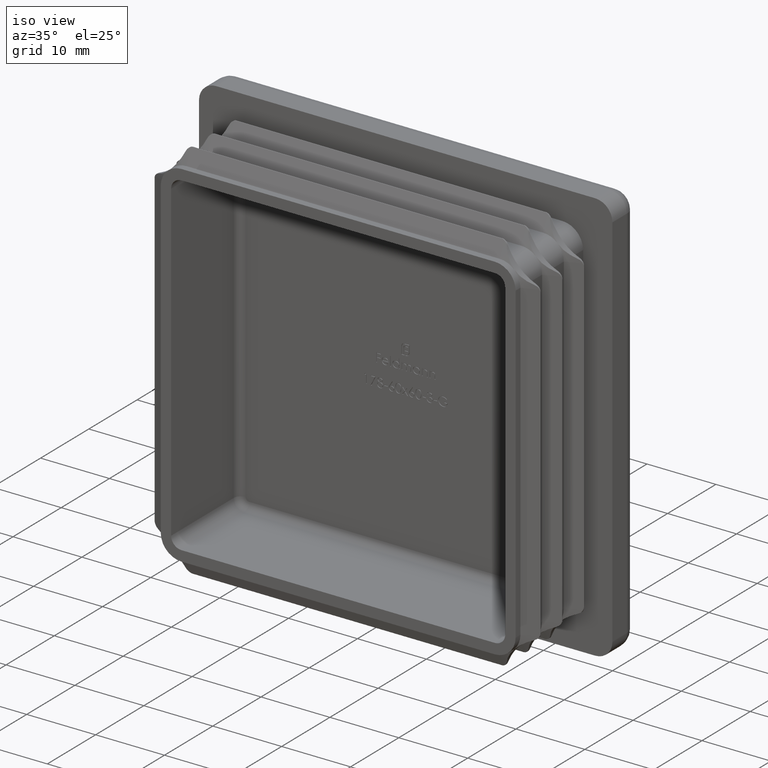
[diagram: clean part render]
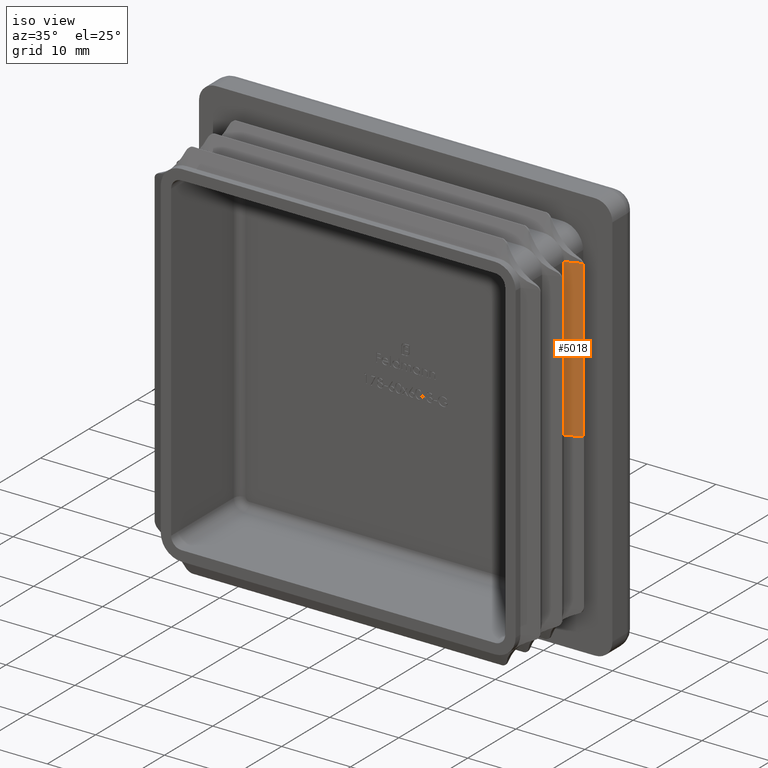
[diagram: same view with one face highlighted and labeled with its STEP entity id]
A machine part, iso view. The second image highlights one B-rep face of the part: STEP entity #5018.
In plain terms, the highlighted planar face has unit normal (-0.3772, 0.9261, -0).
Its self-contained STEP definition (entity closure, byte-faithful):
#29 = AXIS2_PLACEMENT_3D ( 'NONE', #19920, #19847, #4235 ) ;
#358 = LINE ( 'NONE', #5241, #4722 ) ;
#1152 = VECTOR ( 'NONE', #10881, 1000.000000000000341 ) ;
#2331 = CARTESIAN_POINT ( 'NONE',  ( 25.75000000000000355, -4.000000000000000000, 0.000000000000000000 ) ) ;
#3062 = LINE ( 'NONE', #17915, #1152 ) ;
#3403 = CARTESIAN_POINT ( 'NONE',  ( 25.75000000000000000, -3.999999999999998224, 22.75000000000000355 ) ) ;
#3855 = LINE ( 'NONE', #10010, #22130 ) ;
#4235 = DIRECTION ( 'NONE',  ( -0.9261341510340125316, -0.3771942924919580720, 0.000000000000000000 ) ) ;
#4722 = VECTOR ( 'NONE', #19448, 1000.000000000000000 ) ;
#5018 = ADVANCED_FACE ( 'NONE', ( #16969 ), #16465, .F. ) ;
#5230 = CARTESIAN_POINT ( 'NONE',  ( 27.93443383391328894, -3.110327619861025905, 22.69602062712419865 ) ) ;
#5241 = CARTESIAN_POINT ( 'NONE',  ( 27.96885971462460319, -3.096306707551701010, 22.75000000000000355 ) ) ;
#6031 = CARTESIAN_POINT ( 'NONE',  ( 27.90981028720149482, -3.120356254773393623, 22.75000000000000711 ) ) ;
#6226 = VERTEX_POINT ( 'NONE', #2331 ) ;
#6425 = EDGE_CURVE ( 'NONE', #14704, #19134, #358, .T. ) ;
#6590 = EDGE_CURVE ( 'NONE', #12160, #21802, #3062, .T. ) ;
#6706 = ORIENTED_EDGE ( 'NONE', *, *, #6590, .F. ) ;
#6953 = CARTESIAN_POINT ( 'NONE',  ( 27.96885971462460319, -3.096306707551701010, 22.58258589888763268 ) ) ;
#6958 = EDGE_CURVE ( 'NONE', #12160, #6226, #15796, .T. ) ;
#8001 = ORIENTED_EDGE ( 'NONE', *, *, #6958, .T. ) ;
#8930 = ORIENTED_EDGE ( 'NONE', *, *, #6425, .F. ) ;
#8959 = ORIENTED_EDGE ( 'NONE', *, *, #9885, .F. ) ;
#9885 = EDGE_CURVE ( 'NONE', #21802, #14704, #20326, .T. ) ;
#10010 = CARTESIAN_POINT ( 'NONE',  ( 27.96885971462460674, -3.096306707551701454, 0.000000000000000000 ) ) ;
#10881 = DIRECTION ( 'NONE',  ( 0.9261341510340125316, 0.3771942924919580720, 0.000000000000000000 ) ) ;
#12160 = VERTEX_POINT ( 'NONE', #3403 ) ;
#12638 = EDGE_LOOP ( 'NONE', ( #8959, #6706, #8001, #18739, #8930 ) ) ;
#13897 = CARTESIAN_POINT ( 'NONE',  ( 27.95416890698572132, -3.102289953917574117, 22.64006869561545088 ) ) ;
#14704 = VERTEX_POINT ( 'NONE', #17691 ) ;
#15753 = CARTESIAN_POINT ( 'NONE',  ( 27.90981028720149482, -3.120356254773393623, 22.75000000000000711 ) ) ;
#15796 = LINE ( 'NONE', #20994, #18825 ) ;
#16465 = PLANE ( 'NONE',  #29 ) ;
#16969 = FACE_OUTER_BOUND ( 'NONE', #12638, .T. ) ;
#16988 = DIRECTION ( 'NONE',  ( 0.9261341510340125316, 0.3771942924919580720, 0.000000000000000000 ) ) ;
#17691 = CARTESIAN_POINT ( 'NONE',  ( 27.96885971462460319, -3.096306707551701010, 22.58258589888763268 ) ) ;
#17915 = CARTESIAN_POINT ( 'NONE',  ( 27.96885971462460319, -3.096306707551701454, 22.75000000000000711 ) ) ;
#18739 = ORIENTED_EDGE ( 'NONE', *, *, #22226, .T. ) ;
#18825 = VECTOR ( 'NONE', #20922, 1000.000000000000000 ) ;
#18838 = CARTESIAN_POINT ( 'NONE',  ( 27.96885971462460674, -3.096306707551701010, 0.000000000000000000 ) ) ;
#19134 = VERTEX_POINT ( 'NONE', #18838 ) ;
#19448 = DIRECTION ( 'NONE',  ( 7.625158136161789453E-17, 0.000000000000000000, -1.000000000000000000 ) ) ;
#19847 = DIRECTION ( 'NONE',  ( -0.3771942924919581275, 0.9261341510340126426, -2.876166128308845105E-17 ) ) ;
#19920 = CARTESIAN_POINT ( 'NONE',  ( 27.96885971462460319, -3.096306707551701454, 22.75000000000000355 ) ) ;
#20326 =( BOUNDED_CURVE ( )  B_SPLINE_CURVE ( 3, ( #15753, #5230, #13897, #6953 ),
 .UNSPECIFIED., .F., .F. ) 
 B_SPLINE_CURVE_WITH_KNOTS ( ( 4, 4 ),
 ( 2.713623046955985885, 2.891379701794881019 ),
 .UNSPECIFIED. ) 
 CURVE ( )  GEOMETRIC_REPRESENTATION_ITEM ( )  RATIONAL_B_SPLINE_CURVE ( ( 1.000000000000000000, 0.9973686138443197402, 0.9973686138443197402, 1.000000000000000000 ) ) 
 REPRESENTATION_ITEM ( '' )  );
#20922 = DIRECTION ( 'NONE',  ( 7.625158136161789453E-17, 0.000000000000000000, -1.000000000000000000 ) ) ;
#20994 = CARTESIAN_POINT ( 'NONE',  ( 25.74999999999999645, -4.000000000000000888, 22.75000000000000355 ) ) ;
#21802 = VERTEX_POINT ( 'NONE', #6031 ) ;
#22130 = VECTOR ( 'NONE', #16988, 1000.000000000000341 ) ;
#22226 = EDGE_CURVE ( 'NONE', #6226, #19134, #3855, .T. ) ;